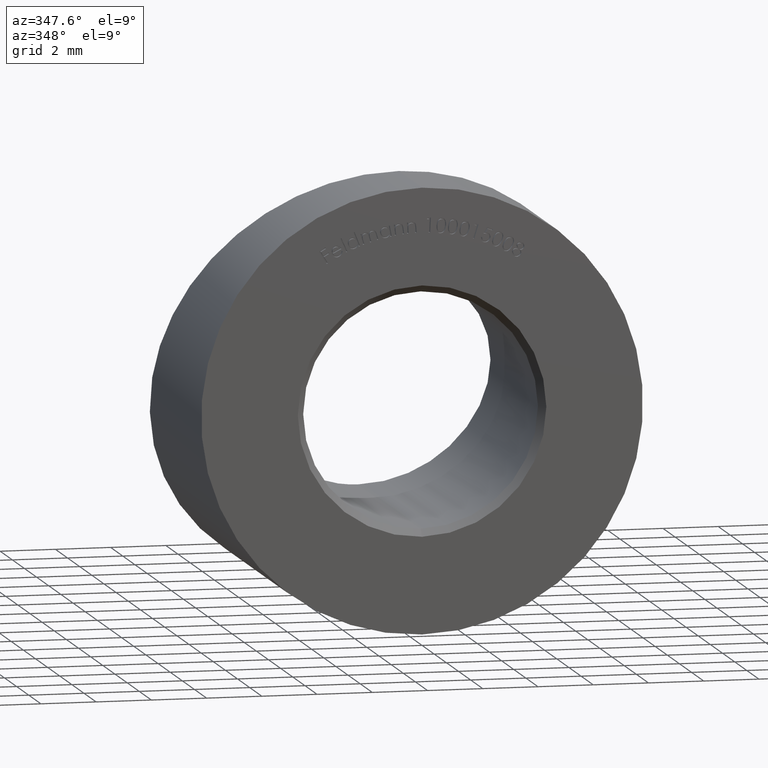
[diagram: clean part render]
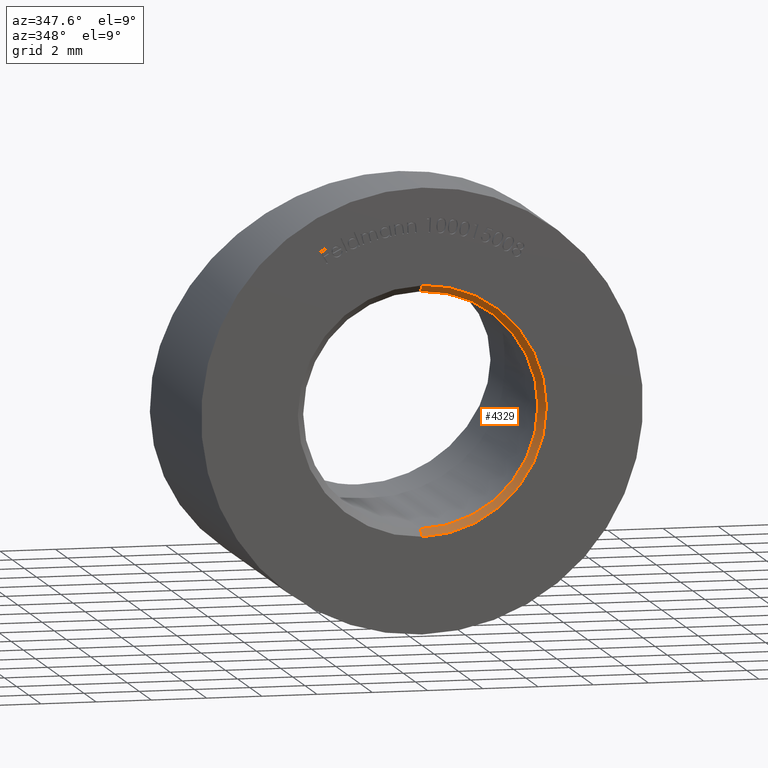
[diagram: same view with one face highlighted and labeled with its STEP entity id]
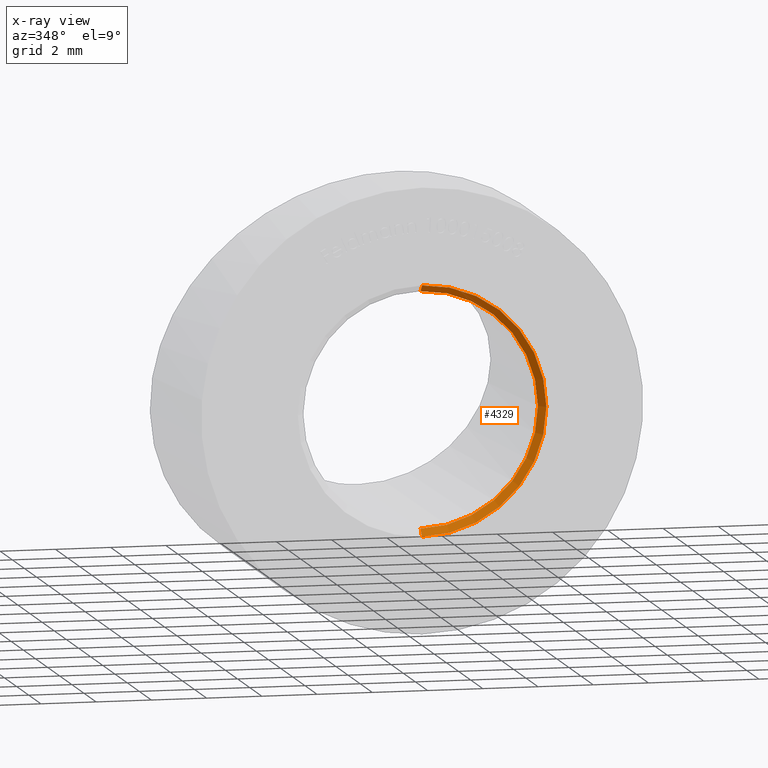
[diagram: x-ray of the same camera — body ghosted, the highlighted face saturated]
A machine part, auxiliary view. The second image highlights one B-rep face of the part: STEP entity #4329.
The next image is the same camera in x-ray: the body ghosted, the highlighted face saturated — about 0% of this face is hidden behind the body in this view.
In plain terms, the highlighted conical surface has half-angle 45 deg.
Its self-contained STEP definition (entity closure, byte-faithful):
#4 = ORIENTED_EDGE ( 'NONE', *, *, #1187, .F. ) ;
#240 = CIRCLE ( 'NONE', #2918, 4.250000000000000000 ) ;
#243 = VERTEX_POINT ( 'NONE', #5089 ) ;
#516 = ORIENTED_EDGE ( 'NONE', *, *, #8618, .T. ) ;
#544 = DIRECTION ( 'NONE',  ( 0.0000000000000000000, 0.0000000000000000000, -1.000000000000000000 ) ) ;
#741 = DIRECTION ( 'NONE',  ( 0.0000000000000000000, -0.7071067811865500200, -0.7071067811865451300 ) ) ;
#865 = LINE ( 'NONE', #4490, #9207 ) ;
#1187 = EDGE_CURVE ( 'NONE', #243, #4732, #865, .T. ) ;
#1294 = EDGE_CURVE ( 'NONE', #4732, #5609, #5967, .T. ) ;
#2918 = AXIS2_PLACEMENT_3D ( 'NONE', #9316, #13520, #11477 ) ;
#3447 = CARTESIAN_POINT ( 'NONE',  ( 0.0000000000000000000, 0.2499999999999985000, -4.250000000000000000 ) ) ;
#4329 = ADVANCED_FACE ( 'NONE', ( #11406 ), #4728, .F. ) ;
#4490 = CARTESIAN_POINT ( 'NONE',  ( 5.204748896376250700E-016, 0.2499999999999985000, 4.250000000000000000 ) ) ;
#4728 = CONICAL_SURFACE ( 'NONE', #10296, 4.250000000000000000, 0.7853981633974447300 ) ;
#4732 = VERTEX_POINT ( 'NONE', #5586 ) ;
#5089 = CARTESIAN_POINT ( 'NONE',  ( 5.204748896376250700E-016, 0.2499999999999985000, 4.250000000000000000 ) ) ;
#5269 = AXIS2_PLACEMENT_3D ( 'NONE', #7410, #9547, #11577 ) ;
#5586 = CARTESIAN_POINT ( 'NONE',  ( 5.510910596163085600E-016, 0.0000000000000000000, 4.499999999999997300 ) ) ;
#5609 = VERTEX_POINT ( 'NONE', #14138 ) ;
#5967 = CIRCLE ( 'NONE', #5269, 4.499999999999997300 ) ;
#6217 = VECTOR ( 'NONE', #741, 1000.000000000000100 ) ;
#6308 = EDGE_LOOP ( 'NONE', ( #4, #10121, #516, #12174 ) ) ;
#7041 = CARTESIAN_POINT ( 'NONE',  ( 0.0000000000000000000, 0.2499999999999985000, 0.0000000000000000000 ) ) ;
#7253 = CARTESIAN_POINT ( 'NONE',  ( 0.0000000000000000000, 0.2499999999999985000, -4.250000000000000000 ) ) ;
#7410 = CARTESIAN_POINT ( 'NONE',  ( 0.0000000000000000000, 0.0000000000000000000, 0.0000000000000000000 ) ) ;
#8618 = EDGE_CURVE ( 'NONE', #13315, #5609, #11170, .T. ) ;
#9207 = VECTOR ( 'NONE', #13297, 1000.000000000000100 ) ;
#9316 = CARTESIAN_POINT ( 'NONE',  ( 0.0000000000000000000, 0.2499999999999985000, 0.0000000000000000000 ) ) ;
#9547 = DIRECTION ( 'NONE',  ( 0.0000000000000000000, 1.000000000000000000, 0.0000000000000000000 ) ) ;
#10121 = ORIENTED_EDGE ( 'NONE', *, *, #13025, .F. ) ;
#10285 = DIRECTION ( 'NONE',  ( 0.0000000000000000000, -1.000000000000000000, 0.0000000000000000000 ) ) ;
#10296 = AXIS2_PLACEMENT_3D ( 'NONE', #7041, #10285, #544 ) ;
#11170 = LINE ( 'NONE', #7253, #6217 ) ;
#11406 = FACE_OUTER_BOUND ( 'NONE', #6308, .T. ) ;
#11477 = DIRECTION ( 'NONE',  ( 0.0000000000000000000, 0.0000000000000000000, 1.000000000000000000 ) ) ;
#11577 = DIRECTION ( 'NONE',  ( 0.0000000000000000000, 0.0000000000000000000, 1.000000000000000000 ) ) ;
#12174 = ORIENTED_EDGE ( 'NONE', *, *, #1294, .F. ) ;
#13025 = EDGE_CURVE ( 'NONE', #13315, #243, #240, .T. ) ;
#13297 = DIRECTION ( 'NONE',  ( 8.659560562354904500E-017, -0.7071067811865500200, 0.7071067811865451300 ) ) ;
#13315 = VERTEX_POINT ( 'NONE', #3447 ) ;
#13520 = DIRECTION ( 'NONE',  ( 0.0000000000000000000, -1.000000000000000000, 0.0000000000000000000 ) ) ;
#14138 = CARTESIAN_POINT ( 'NONE',  ( 0.0000000000000000000, 0.0000000000000000000, -4.499999999999997300 ) ) ;